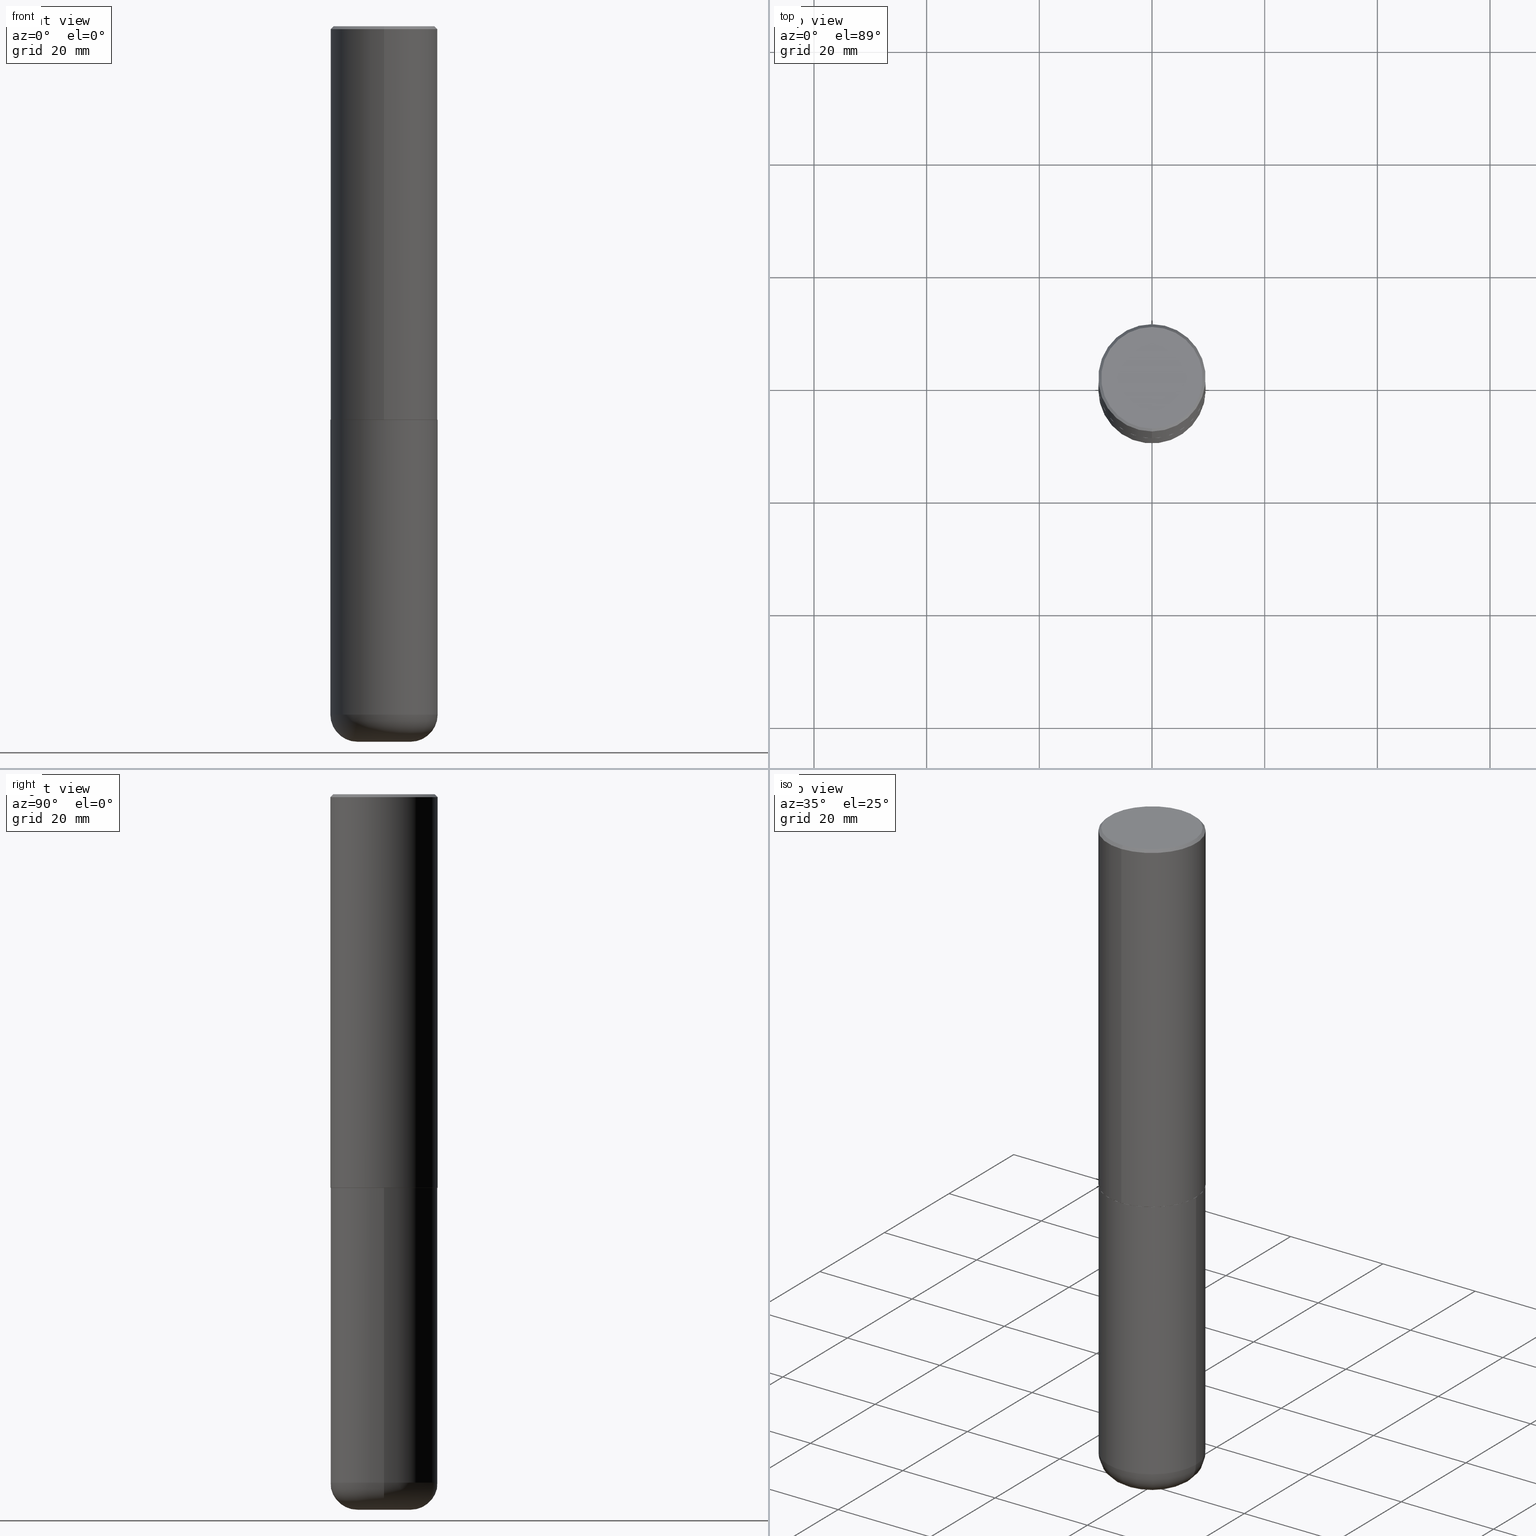
[diagram: canonical four-view strip — front | top / right | iso, engineering-drawing reading convention]
A machine part, canonical four-view strip (front | top / right | iso — engineering-drawing reading convention). The complete STEP part file that produces these views, byte-faithful:
ISO-10303-21;
HEADER;
FILE_DESCRIPTION (( 'STEP AP203' ),
    '1' );
FILE_NAME ('37677.STEP',
    '2024-03-02T07:57:05',
    ( '' ),
    ( '' ),
    'SwSTEP 2.0',
    'SolidWorks 2023',
    '' );
FILE_SCHEMA (( 'CONFIG_CONTROL_DESIGN' ));
ENDSEC;

DATA;
#1 = AXIS2_PLACEMENT_3D ( 'NONE', #125, #413, #289 ) ;
#2 = APPROVAL_ROLE ( '' ) ;
#3 = DIRECTION ( 'NONE',  ( 1.000000000000000000, -6.982962677686265922E-15, 4.876176775795935793E-29 ) ) ;
#4 = AXIS2_PLACEMENT_3D ( 'NONE', #245, #22, #303 ) ;
#5 = CARTESIAN_POINT ( 'NONE',  ( 6.726611077289389265E-29, -9.599322688432580971E-15, -2.750000000000000000 ) ) ;
#6 = LOCAL_TIME ( 2, 57, 5.000000000000000000, #117 ) ;
#7 = DIRECTION ( 'NONE',  ( -2.445468806185136597E-29, 3.491481338843145583E-15, 1.000000000000000000 ) ) ;
#8 = EDGE_LOOP ( 'NONE', ( #304, #250, #361, #72 ) ) ;
#9 = DIRECTION ( 'NONE',  ( -6.982962677686266711E-15, -1.000000000000000000, 3.491481338843145583E-15 ) ) ;
#10 = ORIENTED_EDGE ( 'NONE', *, *, #294, .T. ) ;
#11 = DIRECTION ( 'NONE',  ( -2.446040391741596606E-29, 3.490662795793665557E-15, 1.000000000000000000 ) ) ;
#12 = ADVANCED_FACE ( 'NONE', ( #354 ), #332, .T. ) ;
#13 = APPROVAL_PERSON_ORGANIZATION ( #84, #208, #275 ) ;
#14 = CARTESIAN_POINT ( 'NONE',  ( -1.141397163745304909E-45, 1.628849886601155835E-31, 4.666305460853910467E-17 ) ) ;
#15 = DIRECTION ( 'NONE',  ( 1.000000000000000000, -6.982962677686265922E-15, 0.000000000000000000 ) ) ;
#16 = CLOSED_SHELL ( 'NONE', ( #141, #129, #30, #73, #297, #167 ) ) ;
#17 = VERTEX_POINT ( 'NONE', #314 ) ;
#18 = VECTOR ( 'NONE', #271, 39.37007874015748143 ) ;
#19 = CARTESIAN_POINT ( 'NONE',  ( -2.572686749164323547E-15, -0.3750000000000001110, -0.01999999999999877570 ) ) ;
#20 = CIRCLE ( 'NONE', #241, 0.3750000000000003886 ) ;
#21 = CC_DESIGN_PERSON_AND_ORGANIZATION_ASSIGNMENT ( #384, #223, ( #307 ) ) ;
#22 = DIRECTION ( 'NONE',  ( 2.446040391741596606E-29, -3.490662795793665557E-15, -1.000000000000000000 ) ) ;
#23 = ORIENTED_EDGE ( 'NONE', *, *, #340, .F. ) ;
#24 = CARTESIAN_POINT ( 'NONE',  ( -2.618611004132351594E-15, -0.3750000000000002220, 1.308998548422625521E-15 ) ) ;
#25 = FACE_OUTER_BOUND ( 'NONE', #203, .T. ) ;
#26 = EDGE_CURVE ( 'NONE', #87, #219, #414, .T. ) ;
#27 = CONICAL_SURFACE ( 'NONE', #4, 0.3750000000000000555, 0.7853981633974465026 ) ;
#28 = EDGE_LOOP ( 'NONE', ( #155, #122, #311, #218 ) ) ;
#29 = VECTOR ( 'NONE', #388, 39.37007874015748143 ) ;
#30 = ADVANCED_FACE ( 'NONE', ( #25 ), #254, .F. ) ;
#31 = EDGE_LOOP ( 'NONE', ( #378, #385, #46, #205 ) ) ;
#32 = LINE ( 'NONE', #24, #295 ) ;
#33 = APPROVAL_DATE_TIME ( #390, #186 ) ;
#34 = CARTESIAN_POINT ( 'NONE',  ( -2.572686749164323547E-15, -0.3750000000000001110, -0.01999999999999877570 ) ) ;
#35 = ORIENTED_EDGE ( 'NONE', *, *, #308, .F. ) ;
#36 = CARTESIAN_POINT ( 'NONE',  ( 6.724165036897648492E-29, -9.595832025636787455E-15, -2.749000000000000110 ) ) ;
#37 = AXIS2_PLACEMENT_3D ( 'NONE', #381, #282, #359 ) ;
#38 = CARTESIAN_POINT ( 'NONE',  ( -2.611628041454596160E-15, -0.3740000000000096581, -2.749999999999998668 ) ) ;
#39 = APPROVAL_PERSON_ORGANIZATION ( #92, #126, #40 ) ;
#40 = APPROVAL_ROLE ( '' ) ;
#41 = DIRECTION ( 'NONE',  ( 1.000000000000000000, -6.982962677686266711E-15, 0.000000000000000000 ) ) ;
#42 = ORIENTED_EDGE ( 'NONE', *, *, #333, .F. ) ;
#43 = DIRECTION ( 'NONE',  ( -2.446040391741596045E-29, 3.490662795793665557E-15, 1.000000000000000000 ) ) ;
#44 = TOROIDAL_SURFACE ( 'NONE', #403, 0.1850000000000000533, 0.1899999999999999467 ) ;
#45 = DIRECTION ( 'NONE',  ( -1.000000000000000000, 6.982962677686265922E-15, -4.876176775795935793E-29 ) ) ;
#46 = ORIENTED_EDGE ( 'NONE', *, *, #174, .F. ) ;
#47 = PRODUCT_DEFINITION_FORMATION_WITH_SPECIFIED_SOURCE ( 'ANY', '', #307, .NOT_KNOWN. ) ;
#48 = DIRECTION ( 'NONE',  ( -2.445468806185136597E-29, 3.491481338843145583E-15, 1.000000000000000000 ) ) ;
#49 = CARTESIAN_POINT ( 'NONE',  ( 1.176270495775050811E-28, -1.679402523983553013E-14, -4.810000000000000497 ) ) ;
#50 = CARTESIAN_POINT ( 'NONE',  ( 6.726611077289389265E-29, -9.599322688432580971E-15, -2.750000000000000000 ) ) ;
#51 = CARTESIAN_POINT ( 'NONE',  ( 0.3750000000000000555, -1.222018468595100145E-14, -2.750000000000000000 ) ) ;
#52 = ORIENTED_EDGE ( 'NONE', *, *, #226, .T. ) ;
#53 = CARTESIAN_POINT ( 'NONE',  ( 2.618611004132350411E-15, 0.3749999999999999445, -0.02000000000000139513 ) ) ;
#54 = ADVANCED_FACE ( 'NONE', ( #66 ), #283, .F. ) ;
#55 = VERTEX_POINT ( 'NONE', #299 ) ;
#56 = CONICAL_SURFACE ( 'NONE', #338, 0.3739999999999999991, 0.7853981633977213939 ) ;
#57 = DIRECTION ( 'NONE',  ( -2.446040391741596606E-29, 3.490662795793665557E-15, 1.000000000000000000 ) ) ;
#58 = LOCAL_TIME ( 2, 57, 5.000000000000000000, #98 ) ;
#59 = PERSON_AND_ORGANIZATION_ROLE ( 'classification_officer' ) ;
#60 = CARTESIAN_POINT ( 'NONE',  ( 2.660982545421643429E-15, 0.3739999999999903957, -2.750000000000000888 ) ) ;
#61 = MECHANICAL_CONTEXT ( 'NONE', #169, 'mechanical' ) ;
#62 = CIRCLE ( 'NONE', #124, 0.3750000000000000555 ) ;
#63 = VERTEX_POINT ( 'NONE', #237 ) ;
#64 = DATE_AND_TIME ( #187, #234 ) ;
#65 = UNCERTAINTY_MEASURE_WITH_UNIT (LENGTH_MEASURE( 1.000000000000000082E-05 ), #334, 'distance_accuracy_value', 'NONE');
#66 = FACE_OUTER_BOUND ( 'NONE', #331, .T. ) ;
#67 = SHAPE_DEFINITION_REPRESENTATION ( #142, #113 ) ;
#68 = DIRECTION ( 'NONE',  ( 6.982962677686265922E-15, 1.000000000000000000, -3.494488891895536035E-15 ) ) ;
#69 = PERSON_AND_ORGANIZATION ( #220, #335 ) ;
#70 = PERSON_AND_ORGANIZATION ( #220, #335 ) ;
#71 = DIRECTION ( 'NONE',  ( 2.446040391741596045E-29, -3.490662795793665557E-15, -1.000000000000000000 ) ) ;
#72 = ORIENTED_EDGE ( 'NONE', *, *, #294, .F. ) ;
#73 = ADVANCED_FACE ( 'NONE', ( #328 ), #370, .T. ) ;
#74 = DIRECTION ( 'NONE',  ( 2.438088387897960049E-29, -3.491481338843145188E-15, -1.000000000000000000 ) ) ;
#75 = FACE_OUTER_BOUND ( 'NONE', #31, .T. ) ;
#76 = CIRCLE ( 'NONE', #207, 0.3549999999999999822 ) ;
#77 = EDGE_CURVE ( 'NONE', #349, #253, #62, .T. ) ;
#78 = CARTESIAN_POINT ( 'NONE',  ( -2.611628041454596160E-15, -0.3740000000000096581, -2.749999999999998668 ) ) ;
#79 = CARTESIAN_POINT ( 'NONE',  ( 1.222734403092568523E-28, -1.745740669421572989E-14, -5.000000000000000000 ) ) ;
#80 = DIRECTION ( 'NONE',  ( -6.982962677686266711E-15, -1.000000000000000000, 2.921762560068730595E-15 ) ) ;
#81 = AXIS2_PLACEMENT_3D ( 'NONE', #163, #9, #336 ) ;
#82 = LOCAL_TIME ( 2, 57, 5.000000000000000000, #264 ) ;
#83 = CARTESIAN_POINT ( 'NONE',  ( -2.504081769186608216E-15, -0.3549999999999999822, 1.285848347115290366E-15 ) ) ;
#84 = PERSON_AND_ORGANIZATION ( #220, #335 ) ;
#85 = CARTESIAN_POINT ( 'NONE',  ( 1.222734403092568523E-28, -1.745740669421572989E-14, -5.000000000000000000 ) ) ;
#86 = AXIS2_PLACEMENT_3D ( 'NONE', #329, #330, #400 ) ;
#87 = VERTEX_POINT ( 'NONE', #78 ) ;
#88 = ORIENTED_EDGE ( 'NONE', *, *, #215, .T. ) ;
#89 = DIRECTION ( 'NONE',  ( -6.982962677686265922E-15, -1.000000000000000000, 2.913971193241877611E-15 ) ) ;
#90 = EDGE_LOOP ( 'NONE', ( #221, #52, #393, #402 ) ) ;
#91 = CIRCLE ( 'NONE', #377, 0.3750000000000003886 ) ;
#92 = PERSON_AND_ORGANIZATION ( #220, #335 ) ;
#93 = ORIENTED_EDGE ( 'NONE', *, *, #146, .F. ) ;
#94 = LOCAL_TIME ( 2, 57, 5.000000000000000000, #357 ) ;
#95 = DIRECTION ( 'NONE',  ( -4.937700262165896205E-15, -0.7071067811867381980, 0.7071067811863568364 ) ) ;
#96 = DATE_AND_TIME ( #159, #6 ) ;
#97 = APPROVAL_DATE_TIME ( #389, #208 ) ;
#98 = COORDINATED_UNIVERSAL_TIME_OFFSET ( 5, 0, .BEHIND. ) ;
#99 = ADVANCED_FACE ( 'NONE', ( #201 ), #204, .F. ) ;
#100 = APPROVAL_STATUS ( 'not_yet_approved' ) ;
#101 = PLANE ( 'NONE',  #153 ) ;
#102 = DIRECTION ( 'NONE',  ( 1.000000000000000000, -6.982962677686265922E-15, 4.876176775795935793E-29 ) ) ;
#103 = CIRCLE ( 'NONE', #266, 0.3750000000000001110 ) ;
#104 = DIRECTION ( 'NONE',  ( -2.445468806185136597E-29, 3.491481338843145583E-15, 1.000000000000000000 ) ) ;
#105 = FACE_OUTER_BOUND ( 'NONE', #182, .T. ) ;
#106 = EDGE_CURVE ( 'NONE', #210, #17, #76, .T. ) ;
#107 = DIRECTION ( 'NONE',  ( 1.000000000000000000, -6.982962677686272233E-15, 0.000000000000000000 ) ) ;
#108 = ORIENTED_EDGE ( 'NONE', *, *, #302, .T. ) ;
#109 = AXIS2_PLACEMENT_3D ( 'NONE', #255, #127, #318 ) ;
#110 = CC_DESIGN_PERSON_AND_ORGANIZATION_ASSIGNMENT ( #415, #157, ( #231 ) ) ;
#111 = FACE_OUTER_BOUND ( 'NONE', #8, .T. ) ;
#112 = EDGE_LOOP ( 'NONE', ( #88, #285, #120, #42 ) ) ;
#113 = ADVANCED_BREP_SHAPE_REPRESENTATION ( '37677', ( #344, #352, #109 ), #399 ) ;
#114 = EDGE_CURVE ( 'NONE', #148, #63, #200, .T. ) ;
#115 = DIRECTION ( 'NONE',  ( -6.982962677686266711E-15, -1.000000000000000000, 3.490662795793665951E-15 ) ) ;
#116 = AXIS2_PLACEMENT_3D ( 'NONE', #14, #310, #306 ) ;
#117 = COORDINATED_UNIVERSAL_TIME_OFFSET ( 5, 0, .BEHIND. ) ;
#118 = EDGE_LOOP ( 'NONE', ( #166, #407, #412, #23 ) ) ;
#119 = DIRECTION ( 'NONE',  ( -2.446040391741596606E-29, 3.490662795793665557E-15, 1.000000000000000000 ) ) ;
#120 = ORIENTED_EDGE ( 'NONE', *, *, #358, .F. ) ;
#121 = ADVANCED_FACE ( 'NONE', ( #134 ), #396, .T. ) ;
#122 = ORIENTED_EDGE ( 'NONE', *, *, #222, .F. ) ;
#123 = CALENDAR_DATE ( 2024, 2, 3 ) ;
#124 = AXIS2_PLACEMENT_3D ( 'NONE', #240, #195, #41 ) ;
#125 = CARTESIAN_POINT ( 'NONE',  ( 4.892080783483214581E-31, -6.981325591587361238E-17, -0.02000000000000008715 ) ) ;
#126 = APPROVAL ( #291, 'UNSPECIFIED' ) ;
#127 = DIRECTION ( 'NONE',  ( 0.000000000000000000, 0.000000000000000000, 1.000000000000000000 ) ) ;
#128 = APPLICATION_PROTOCOL_DEFINITION ( 'international standard', 'config_control_design', 1994, #263 ) ;
#129 = ADVANCED_FACE ( 'NONE', ( #105 ), #44, .T. ) ;
#130 = LENGTH_MEASURE_WITH_UNIT ( LENGTH_MEASURE( 0.02539999999999999897 ), #233 );
#131 = LINE ( 'NONE', #198, #18 ) ;
#132 = CALENDAR_DATE ( 2024, 2, 3 ) ;
#133 = AXIS2_PLACEMENT_3D ( 'NONE', #216, #346, #312 ) ;
#134 = FACE_OUTER_BOUND ( 'NONE', #112, .T. ) ;
#135 = DIRECTION ( 'NONE',  ( 1.000000000000000000, -6.982962677686265922E-15, 0.000000000000000000 ) ) ;
#136 = CARTESIAN_POINT ( 'NONE',  ( 0.000000000000000000, 0.000000000000000000, 0.000000000000000000 ) ) ;
#137 = VERTEX_POINT ( 'NONE', #367 ) ;
#138 = AXIS2_PLACEMENT_3D ( 'NONE', #268, #104, #102 ) ;
#139 = DIRECTION ( 'NONE',  ( -2.445468806185136597E-29, 3.491481338843145583E-15, 1.000000000000000000 ) ) ;
#140 = LINE ( 'NONE', #19, #179 ) ;
#141 = ADVANCED_FACE ( 'NONE', ( #75 ), #168, .T. ) ;
#142 = PRODUCT_DEFINITION_SHAPE ( 'NONE', 'NONE',  #231 ) ;
#143 = CC_DESIGN_PERSON_AND_ORGANIZATION_ASSIGNMENT ( #348, #247, ( #47 ) ) ;
#144 = CIRCLE ( 'NONE', #116, 0.3549999999999999822 ) ;
#145 = CC_DESIGN_APPROVAL ( #126, ( #202 ) ) ;
#146 = EDGE_CURVE ( 'NONE', #137, #349, #131, .T. ) ;
#147 = DIRECTION ( 'NONE',  ( 4.937700262164538576E-15, 0.7071067811865437980, -0.7071067811865512365 ) ) ;
#148 = VERTEX_POINT ( 'NONE', #397 ) ;
#149 = CC_DESIGN_PERSON_AND_ORGANIZATION_ASSIGNMENT ( #374, #59, ( #202 ) ) ;
#150 = SECURITY_CLASSIFICATION_LEVEL ( 'unclassified' ) ;
#151 = FACE_OUTER_BOUND ( 'NONE', #28, .T. ) ;
#152 = CARTESIAN_POINT ( 'NONE',  ( 6.725039217009124520E-29, -9.601573681818649859E-15, -2.750000000000000000 ) ) ;
#153 = AXIS2_PLACEMENT_3D ( 'NONE', #235, #74, #45 ) ;
#154 = DIRECTION ( 'NONE',  ( -2.446040391741596606E-29, 3.490662795793665557E-15, 1.000000000000000000 ) ) ;
#155 = ORIENTED_EDGE ( 'NONE', *, *, #226, .F. ) ;
#156 = DIRECTION ( 'NONE',  ( 7.105427357601001859E-15, 1.000000000000000000, -3.491481338843145583E-15 ) ) ;
#157 = PERSON_AND_ORGANIZATION_ROLE ( 'creator' ) ;
#158 = LINE ( 'NONE', #262, #29 ) ;
#159 = CALENDAR_DATE ( 2024, 2, 3 ) ;
#160 = EDGE_CURVE ( 'NONE', #375, #410, #305, .T. ) ;
#161 = AXIS2_PLACEMENT_3D ( 'NONE', #416, #350, #68 ) ;
#162 = DIRECTION ( 'NONE',  ( -6.982962677686265922E-15, -1.000000000000000000, 3.490662795793665557E-15 ) ) ;
#163 = CARTESIAN_POINT ( 'NONE',  ( 0.1850000000000000533, -1.808587333520749010E-14, -4.810000000000000497 ) ) ;
#164 = DIRECTION ( 'NONE',  ( 1.000000000000000000, -6.982962677686266711E-15, 0.000000000000000000 ) ) ;
#165 = CC_DESIGN_SECURITY_CLASSIFICATION ( #202, ( #47 ) ) ;
#166 = ORIENTED_EDGE ( 'NONE', *, *, #193, .F. ) ;
#167 = ADVANCED_FACE ( 'NONE', ( #265 ), #101, .T. ) ;
#168 = CYLINDRICAL_SURFACE ( 'NONE', #276, 0.3750000000000001110 ) ;
#169 = APPLICATION_CONTEXT ( 'configuration controlled 3d designs of mechanical parts and assemblies' ) ;
#170 = CC_DESIGN_DATE_AND_TIME_ASSIGNMENT ( #387, #225, ( #231 ) ) ;
#171 = CARTESIAN_POINT ( 'NONE',  ( 2.478951750578624209E-15, 0.3549999999999999822, -1.215853765202481601E-15 ) ) ;
#172 = VECTOR ( 'NONE', #95, 39.37007874015748143 ) ;
#173 = DIRECTION ( 'NONE',  ( -2.446040391741596606E-29, 3.490662795793665557E-15, 1.000000000000000000 ) ) ;
#174 = EDGE_CURVE ( 'NONE', #253, #349, #369, .T. ) ;
#175 = DIRECTION ( 'NONE',  ( -2.445468806185136597E-29, 3.491481338843145583E-15, 1.000000000000000000 ) ) ;
#176 =( NAMED_UNIT ( * ) SI_UNIT ( $, .STERADIAN. ) SOLID_ANGLE_UNIT ( ) );
#177 = EDGE_CURVE ( 'NONE', #63, #137, #290, .T. ) ;
#178 = DIRECTION ( 'NONE',  ( -2.446040391741596606E-29, 3.490662795793665557E-15, 1.000000000000000000 ) ) ;
#179 = VECTOR ( 'NONE', #206, 39.37007874015748143 ) ;
#180 =( NAMED_UNIT ( * ) PLANE_ANGLE_UNIT ( ) SI_UNIT ( $, .RADIAN. ) );
#181 = DIRECTION ( 'NONE',  ( -2.446040391741596606E-29, 3.490662795793665557E-15, 1.000000000000000000 ) ) ;
#182 = EDGE_LOOP ( 'NONE', ( #108, #315, #406, #269 ) ) ;
#183 = ORIENTED_EDGE ( 'NONE', *, *, #160, .F. ) ;
#184 = CIRCLE ( 'NONE', #398, 0.1850000000000000810 ) ;
#185 = ORIENTED_EDGE ( 'NONE', *, *, #77, .F. ) ;
#186 = APPROVAL ( #192, 'UNSPECIFIED' ) ;
#187 = CALENDAR_DATE ( 2024, 2, 3 ) ;
#188 = DIRECTION ( 'NONE',  ( -1.000000000000000000, 7.105427357601001070E-15, 0.000000000000000000 ) ) ;
#189 = ORIENTED_EDGE ( 'NONE', *, *, #333, .T. ) ;
#190 = CARTESIAN_POINT ( 'NONE',  ( 2.664535259100376880E-15, 0.3750000000000002220, -1.308998548422625521E-15 ) ) ;
#191 = ORIENTED_EDGE ( 'NONE', *, *, #284, .F. ) ;
#192 = APPROVAL_STATUS ( 'not_yet_approved' ) ;
#193 = EDGE_CURVE ( 'NONE', #382, #55, #270, .T. ) ;
#194 = PERSON_AND_ORGANIZATION_ROLE ( 'creator' ) ;
#195 = DIRECTION ( 'NONE',  ( -2.445468806185136597E-29, 3.491481338843145583E-15, 1.000000000000000000 ) ) ;
#196 = ORIENTED_EDGE ( 'NONE', *, *, #26, .F. ) ;
#197 = CARTESIAN_POINT ( 'NONE',  ( 6.725039217009124520E-29, -9.601573681818649859E-15, -2.750000000000000000 ) ) ;
#198 = CARTESIAN_POINT ( 'NONE',  ( -0.3750000000000001110, 2.664535259100376486E-15, -1.844600658845590159E-29 ) ) ;
#199 = ORIENTED_EDGE ( 'NONE', *, *, #249, .F. ) ;
#200 = CIRCLE ( 'NONE', #81, 0.1899999999999999190 ) ;
#201 = FACE_OUTER_BOUND ( 'NONE', #280, .T. ) ;
#202 = SECURITY_CLASSIFICATION ( '', '', #150 ) ;
#203 = EDGE_LOOP ( 'NONE', ( #229, #321 ) ) ;
#204 = PLANE ( 'NONE',  #356 ) ;
#205 = ORIENTED_EDGE ( 'NONE', *, *, #411, .F. ) ;
#206 = DIRECTION ( 'NONE',  ( -4.851104656540954809E-15, -0.7071067811865486830, -0.7071067811865463515 ) ) ;
#207 = AXIS2_PLACEMENT_3D ( 'NONE', #392, #298, #368 ) ;
#208 = APPROVAL ( #100, 'UNSPECIFIED' ) ;
#209 = CARTESIAN_POINT ( 'NONE',  ( 6.724165036897648492E-29, -9.595832025636787455E-15, -2.749000000000000110 ) ) ;
#210 = VERTEX_POINT ( 'NONE', #83 ) ;
#211 = CONICAL_SURFACE ( 'NONE', #161, 0.3750000000000000555, 0.7853981633974465026 ) ;
#212 = FACE_OUTER_BOUND ( 'NONE', #343, .T. ) ;
#213 = ORIENTED_EDGE ( 'NONE', *, *, #106, .T. ) ;
#214 = ORIENTED_EDGE ( 'NONE', *, *, #302, .F. ) ;
#215 = EDGE_CURVE ( 'NONE', #219, #55, #91, .T. ) ;
#216 = CARTESIAN_POINT ( 'NONE',  ( 1.176270495775050811E-28, -1.679402523983553013E-14, -4.810000000000000497 ) ) ;
#217 = CIRCLE ( 'NONE', #37, 0.3739999999999999991 ) ;
#218 = ORIENTED_EDGE ( 'NONE', *, *, #160, .T. ) ;
#219 = VERTEX_POINT ( 'NONE', #300 ) ;
#220 = PERSON ( 'UNSPECIFIED', 'UNSPECIFIED', 'UNSPECIFIED', ('UNSPECIFIED'), ('UNSPECIFIED'), ('UNSPECIFIED') ) ;
#221 = ORIENTED_EDGE ( 'NONE', *, *, #106, .F. ) ;
#222 = EDGE_CURVE ( 'NONE', #17, #210, #144, .T. ) ;
#223 = PERSON_AND_ORGANIZATION_ROLE ( 'design_owner' ) ;
#224 = CARTESIAN_POINT ( 'NONE',  ( -0.1850000000000000810, -1.513619630689734772E-14, -5.000000000000000000 ) ) ;
#225 = DATE_TIME_ROLE ( 'creation_date' ) ;
#226 = EDGE_CURVE ( 'NONE', #210, #410, #140, .T. ) ;
#227 = DATE_TIME_ROLE ( 'classification_date' ) ;
#228 = LINE ( 'NONE', #190, #261 ) ;
#229 = ORIENTED_EDGE ( 'NONE', *, *, #174, .T. ) ;
#230 = APPLICATION_PROTOCOL_DEFINITION ( 'international standard', 'config_control_design', 1994, #169 ) ;
#231 = PRODUCT_DEFINITION ( 'UNKNOWN', '', #47, #288 ) ;
#232 = AXIS2_PLACEMENT_3D ( 'NONE', #197, #292, #164 ) ;
#233 =( LENGTH_UNIT ( ) NAMED_UNIT ( * ) SI_UNIT ( $, .METRE. ) );
#234 = LOCAL_TIME ( 2, 57, 5.000000000000000000, #322 ) ;
#235 = CARTESIAN_POINT ( 'NONE',  ( 1.222734403092568523E-28, -1.745740669421572989E-14, -5.000000000000000000 ) ) ;
#236 = EDGE_CURVE ( 'NONE', #17, #375, #273, .T. ) ;
#237 = CARTESIAN_POINT ( 'NONE',  ( 0.3750000000000000555, -1.941263624396788015E-14, -4.810000000000000497 ) ) ;
#238 = ORIENTED_EDGE ( 'NONE', *, *, #222, .T. ) ;
#239 = CARTESIAN_POINT ( 'NONE',  ( 0.000000000000000000, 0.000000000000000000, 0.000000000000000000 ) ) ;
#240 = CARTESIAN_POINT ( 'NONE',  ( 6.725039217009124520E-29, -9.601573681818649859E-15, -2.750000000000000000 ) ) ;
#241 = AXIS2_PLACEMENT_3D ( 'NONE', #36, #181, #89 ) ;
#242 = ORIENTED_EDGE ( 'NONE', *, *, #418, .F. ) ;
#243 = DIRECTION ( 'NONE',  ( -6.982962677686266711E-15, -1.000000000000000000, 3.490662795793665951E-15 ) ) ;
#244 = CC_DESIGN_PERSON_AND_ORGANIZATION_ASSIGNMENT ( #70, #194, ( #47 ) ) ;
#245 = CARTESIAN_POINT ( 'NONE',  ( 4.892080783483214581E-31, -6.981325591587361238E-17, -0.02000000000000008715 ) ) ;
#246 = AXIS2_PLACEMENT_3D ( 'NONE', #258, #154, #287 ) ;
#247 = PERSON_AND_ORGANIZATION_ROLE ( 'design_supplier' ) ;
#248 = FACE_OUTER_BOUND ( 'NONE', #90, .T. ) ;
#249 = EDGE_CURVE ( 'NONE', #380, #148, #326, .T. ) ;
#250 = ORIENTED_EDGE ( 'NONE', *, *, #249, .T. ) ;
#251 = VECTOR ( 'NONE', #371, 39.37007874015748143 ) ;
#252 = ADVANCED_FACE ( 'NONE', ( #212 ), #56, .T. ) ;
#253 = VERTEX_POINT ( 'NONE', #51 ) ;
#254 = PLANE ( 'NONE',  #373 ) ;
#255 = CARTESIAN_POINT ( 'NONE',  ( 0.000000000000000000, 0.000000000000000000, 0.000000000000000000 ) ) ;
#256 = DIRECTION ( 'NONE',  ( -2.445468806185136597E-29, 3.491481338843145583E-15, 1.000000000000000000 ) ) ;
#257 = ADVANCED_FACE ( 'NONE', ( #376 ), #342, .T. ) ;
#258 = CARTESIAN_POINT ( 'NONE',  ( 6.726611077289389265E-29, -9.599322688432580971E-15, -2.750000000000000000 ) ) ;
#259 = CALENDAR_DATE ( 2024, 2, 3 ) ;
#260 = CIRCLE ( 'NONE', #417, 0.3739999999999999991 ) ;
#261 = VECTOR ( 'NONE', #323, 39.37007874015748143 ) ;
#262 = CARTESIAN_POINT ( 'NONE',  ( 0.3750000000000001110, -2.618611004132350411E-15, 1.828566290923476483E-29 ) ) ;
#263 = APPLICATION_CONTEXT ( 'configuration controlled 3d designs of mechanical parts and assemblies' ) ;
#264 = COORDINATED_UNIVERSAL_TIME_OFFSET ( 5, 0, .BEHIND. ) ;
#265 = FACE_OUTER_BOUND ( 'NONE', #279, .T. ) ;
#266 = AXIS2_PLACEMENT_3D ( 'NONE', #339, #175, #15 ) ;
#267 = APPROVAL_PERSON_ORGANIZATION ( #69, #186, #2 ) ;
#268 = CARTESIAN_POINT ( 'NONE',  ( 0.000000000000000000, 0.000000000000000000, 0.000000000000000000 ) ) ;
#269 = ORIENTED_EDGE ( 'NONE', *, *, #114, .F. ) ;
#270 = LINE ( 'NONE', #408, #251 ) ;
#271 = DIRECTION ( 'NONE',  ( -2.445468806185136877E-29, 3.491481338843145188E-15, 1.000000000000000000 ) ) ;
#272 = AXIS2_PLACEMENT_3D ( 'NONE', #296, #7, #135 ) ;
#273 = LINE ( 'NONE', #53, #391 ) ;
#274 = ORIENTED_EDGE ( 'NONE', *, *, #215, .F. ) ;
#275 = APPROVAL_ROLE ( '' ) ;
#276 = AXIS2_PLACEMENT_3D ( 'NONE', #136, #139, #3 ) ;
#277 = CIRCLE ( 'NONE', #1, 0.3750000000000000555 ) ;
#278 = DIRECTION ( 'NONE',  ( -6.982962677686265922E-15, -1.000000000000000000, 2.913971193241877611E-15 ) ) ;
#279 = EDGE_LOOP ( 'NONE', ( #214, #199 ) ) ;
#280 = EDGE_LOOP ( 'NONE', ( #191, #35 ) ) ;
#281 = ADVANCED_FACE ( 'NONE', ( #248 ), #27, .T. ) ;
#282 = DIRECTION ( 'NONE',  ( -2.446040391741596606E-29, 3.490662795793665557E-15, 1.000000000000000000 ) ) ;
#283 = PLANE ( 'NONE',  #362 ) ;
#284 = EDGE_CURVE ( 'NONE', #87, #382, #260, .T. ) ;
#285 = ORIENTED_EDGE ( 'NONE', *, *, #418, .T. ) ;
#286 = CARTESIAN_POINT ( 'NONE',  ( -0.3750000000000000555, -1.053326420172671351E-14, -2.750000000000000000 ) ) ;
#287 = DIRECTION ( 'NONE',  ( -6.982962677686266711E-15, -1.000000000000000000, 2.921762560068730595E-15 ) ) ;
#288 = DESIGN_CONTEXT ( 'detailed design', #263, 'design' ) ;
#289 = DIRECTION ( 'NONE',  ( -6.982962677686265922E-15, -1.000000000000000000, 3.494488891895536035E-15 ) ) ;
#290 = CIRCLE ( 'NONE', #272, 0.3750000000000001110 ) ;
#291 = APPROVAL_STATUS ( 'not_yet_approved' ) ;
#292 = DIRECTION ( 'NONE',  ( -2.445468806185136597E-29, 3.491481338843145583E-15, 1.000000000000000000 ) ) ;
#293 = AXIS2_PLACEMENT_3D ( 'NONE', #239, #11, #243 ) ;
#294 = EDGE_CURVE ( 'NONE', #137, #63, #103, .T. ) ;
#295 = VECTOR ( 'NONE', #119, 39.37007874015748143 ) ;
#296 = CARTESIAN_POINT ( 'NONE',  ( 1.176270495775050811E-28, -1.679402523983553013E-14, -4.810000000000000497 ) ) ;
#297 = ADVANCED_FACE ( 'NONE', ( #111 ), #345, .T. ) ;
#298 = DIRECTION ( 'NONE',  ( -2.446040391741596606E-29, 3.490662795793665557E-15, 1.000000000000000000 ) ) ;
#299 = CARTESIAN_POINT ( 'NONE',  ( 2.664535259100411196E-15, 0.3749999999999907296, -2.749000000000000998 ) ) ;
#300 = CARTESIAN_POINT ( 'NONE',  ( -2.618611004132284935E-15, -0.3750000000000099920, -2.748999999999999222 ) ) ;
#301 = CARTESIAN_POINT ( 'NONE',  ( 0.000000000000000000, 0.000000000000000000, 0.000000000000000000 ) ) ;
#302 = EDGE_CURVE ( 'NONE', #148, #380, #184, .T. ) ;
#303 = DIRECTION ( 'NONE',  ( 6.982962677686265922E-15, 1.000000000000000000, -3.494488891895536035E-15 ) ) ;
#304 = ORIENTED_EDGE ( 'NONE', *, *, #395, .F. ) ;
#305 = CIRCLE ( 'NONE', #86, 0.3750000000000000555 ) ;
#306 = DIRECTION ( 'NONE',  ( -6.982962677686265922E-15, -1.000000000000000000, 3.490662795793665557E-15 ) ) ;
#307 = PRODUCT ( '37677', '37677', '', ( #61 ) ) ;
#308 = EDGE_CURVE ( 'NONE', #382, #87, #217, .T. ) ;
#309 = ORIENTED_EDGE ( 'NONE', *, *, #284, .T. ) ;
#310 = DIRECTION ( 'NONE',  ( -2.446040391741596606E-29, 3.490662795793665557E-15, 1.000000000000000000 ) ) ;
#311 = ORIENTED_EDGE ( 'NONE', *, *, #236, .T. ) ;
#312 = DIRECTION ( 'NONE',  ( 1.000000000000000000, -6.982962677686269077E-15, 4.883557194083113462E-29 ) ) ;
#313 = PRODUCT_RELATED_PRODUCT_CATEGORY ( 'detail', '', ( #307 ) ) ;
#314 = CARTESIAN_POINT ( 'NONE',  ( 2.548781377355487113E-15, 0.3549999999999999822, -1.192522237898212341E-15 ) ) ;
#315 = ORIENTED_EDGE ( 'NONE', *, *, #395, .T. ) ;
#316 = AXIS2_PLACEMENT_3D ( 'NONE', #301, #57, #115 ) ;
#317 = ORIENTED_EDGE ( 'NONE', *, *, #411, .T. ) ;
#318 = DIRECTION ( 'NONE',  ( 1.000000000000000000, 0.000000000000000000, 0.000000000000000000 ) ) ;
#319 = CC_DESIGN_APPROVAL ( #208, ( #47 ) ) ;
#320 = DIRECTION ( 'NONE',  ( 1.000000000000000000, -6.982962677686272233E-15, 0.000000000000000000 ) ) ;
#321 = ORIENTED_EDGE ( 'NONE', *, *, #77, .T. ) ;
#322 = COORDINATED_UNIVERSAL_TIME_OFFSET ( 5, 0, .BEHIND. ) ;
#323 = DIRECTION ( 'NONE',  ( -2.446040391741596606E-29, 3.490662795793665557E-15, 1.000000000000000000 ) ) ;
#324 = CLOSED_SHELL ( 'NONE', ( #252, #121, #281, #360, #257, #12, #99, #54 ) ) ;
#325 = EDGE_LOOP ( 'NONE', ( #242, #351, #189, #183 ) ) ;
#326 = CIRCLE ( 'NONE', #409, 0.1850000000000000810 ) ;
#327 = AXIS2_PLACEMENT_3D ( 'NONE', #353, #156, #188 ) ;
#328 = FACE_OUTER_BOUND ( 'NONE', #341, .T. ) ;
#329 = CARTESIAN_POINT ( 'NONE',  ( 4.892080783483214581E-31, -6.981325591587361238E-17, -0.02000000000000008715 ) ) ;
#330 = DIRECTION ( 'NONE',  ( -2.446040391741596606E-29, 3.490662795793665557E-15, 1.000000000000000000 ) ) ;
#331 = EDGE_LOOP ( 'NONE', ( #238, #213 ) ) ;
#332 = CONICAL_SURFACE ( 'NONE', #246, 0.3739999999999999991, 0.7853981633977213939 ) ;
#333 = EDGE_CURVE ( 'NONE', #219, #410, #32, .T. ) ;
#334 =( CONVERSION_BASED_UNIT ( 'INCH', #130 ) LENGTH_UNIT ( ) NAMED_UNIT ( #404 ) );
#335 = ORGANIZATION ( 'UNSPECIFIED', 'UNSPECIFIED', '' ) ;
#336 = DIRECTION ( 'NONE',  ( 1.000000000000000000, -6.982962677686264344E-15, 0.000000000000000000 ) ) ;
#337 = DIRECTION ( 'NONE',  ( -2.445468806185136597E-29, 3.491481338843145583E-15, 1.000000000000000000 ) ) ;
#338 = AXIS2_PLACEMENT_3D ( 'NONE', #50, #173, #401 ) ;
#339 = CARTESIAN_POINT ( 'NONE',  ( 1.176270495775050811E-28, -1.679402523983553013E-14, -4.810000000000000497 ) ) ;
#340 = EDGE_CURVE ( 'NONE', #55, #219, #20, .T. ) ;
#341 = EDGE_LOOP ( 'NONE', ( #93, #10, #317, #185 ) ) ;
#342 = CYLINDRICAL_SURFACE ( 'NONE', #316, 0.3750000000000002220 ) ;
#343 = EDGE_LOOP ( 'NONE', ( #309, #347, #274, #196 ) ) ;
#344 = MANIFOLD_SOLID_BREP ( 'Body-Move/Copy2[1]', #16 ) ;
#345 = TOROIDAL_SURFACE ( 'NONE', #133, 0.1850000000000000533, 0.1899999999999999467 ) ;
#346 = DIRECTION ( 'NONE',  ( -2.445468806185136597E-29, 3.491481338843145583E-15, 1.000000000000000000 ) ) ;
#347 = ORIENTED_EDGE ( 'NONE', *, *, #193, .T. ) ;
#348 = PERSON_AND_ORGANIZATION ( #220, #335 ) ;
#349 = VERTEX_POINT ( 'NONE', #286 ) ;
#350 = DIRECTION ( 'NONE',  ( 2.446040391741596606E-29, -3.490662795793665557E-15, -1.000000000000000000 ) ) ;
#351 = ORIENTED_EDGE ( 'NONE', *, *, #340, .T. ) ;
#352 = MANIFOLD_SOLID_BREP ( 'Body-Move/Copy2[2]', #324 ) ;
#353 = CARTESIAN_POINT ( 'NONE',  ( -0.1850000000000000533, -1.547952117867934441E-14, -4.810000000000000497 ) ) ;
#354 = FACE_OUTER_BOUND ( 'NONE', #118, .T. ) ;
#355 = CARTESIAN_POINT ( 'NONE',  ( 2.618611004132350411E-15, 0.3749999999999999445, -0.02000000000000139513 ) ) ;
#356 = AXIS2_PLACEMENT_3D ( 'NONE', #5, #43, #162 ) ;
#357 = COORDINATED_UNIVERSAL_TIME_OFFSET ( 5, 0, .BEHIND. ) ;
#358 = EDGE_CURVE ( 'NONE', #410, #375, #277, .T. ) ;
#359 = DIRECTION ( 'NONE',  ( -6.982962677686266711E-15, -1.000000000000000000, 2.921762560068730595E-15 ) ) ;
#360 = ADVANCED_FACE ( 'NONE', ( #151 ), #211, .T. ) ;
#361 = ORIENTED_EDGE ( 'NONE', *, *, #114, .T. ) ;
#362 = AXIS2_PLACEMENT_3D ( 'NONE', #171, #71, #365 ) ;
#363 = CIRCLE ( 'NONE', #327, 0.1899999999999999190 ) ;
#364 = CC_DESIGN_DATE_AND_TIME_ASSIGNMENT ( #96, #227, ( #202 ) ) ;
#365 = DIRECTION ( 'NONE',  ( 6.982962677686265922E-15, 1.000000000000000000, -3.490662795793665557E-15 ) ) ;
#366 = APPROVAL_DATE_TIME ( #64, #126 ) ;
#367 = CARTESIAN_POINT ( 'NONE',  ( -0.3750000000000000555, -1.412948998073515443E-14, -4.810000000000000497 ) ) ;
#368 = DIRECTION ( 'NONE',  ( -6.982962677686265922E-15, -1.000000000000000000, 3.490662795793665557E-15 ) ) ;
#369 = CIRCLE ( 'NONE', #232, 0.3750000000000000555 ) ;
#370 = CYLINDRICAL_SURFACE ( 'NONE', #138, 0.3750000000000001110 ) ;
#371 = DIRECTION ( 'NONE',  ( 5.024295867789434219E-15, 0.7071067811867430830, 0.7071067811863519514 ) ) ;
#372 = DIRECTION ( 'NONE',  ( -2.446040391741596606E-29, 3.490662795793665557E-15, 1.000000000000000000 ) ) ;
#373 = AXIS2_PLACEMENT_3D ( 'NONE', #152, #386, #383 ) ;
#374 = PERSON_AND_ORGANIZATION ( #220, #335 ) ;
#375 = VERTEX_POINT ( 'NONE', #355 ) ;
#376 = FACE_OUTER_BOUND ( 'NONE', #325, .T. ) ;
#377 = AXIS2_PLACEMENT_3D ( 'NONE', #209, #178, #278 ) ;
#378 = ORIENTED_EDGE ( 'NONE', *, *, #177, .T. ) ;
#379 = CC_DESIGN_APPROVAL ( #186, ( #231 ) ) ;
#380 = VERTEX_POINT ( 'NONE', #224 ) ;
#381 = CARTESIAN_POINT ( 'NONE',  ( 6.726611077289389265E-29, -9.599322688432580971E-15, -2.750000000000000000 ) ) ;
#382 = VERTEX_POINT ( 'NONE', #60 ) ;
#383 = DIRECTION ( 'NONE',  ( -1.000000000000000000, 6.982962677686265922E-15, -4.876176775795935793E-29 ) ) ;
#384 = PERSON_AND_ORGANIZATION ( #220, #335 ) ;
#385 = ORIENTED_EDGE ( 'NONE', *, *, #146, .T. ) ;
#386 = DIRECTION ( 'NONE',  ( 2.438088387897960049E-29, -3.491481338843145188E-15, -1.000000000000000000 ) ) ;
#387 = DATE_AND_TIME ( #259, #94 ) ;
#388 = DIRECTION ( 'NONE',  ( -2.445468806185136877E-29, 3.491481338843145188E-15, 1.000000000000000000 ) ) ;
#389 = DATE_AND_TIME ( #132, #58 ) ;
#390 = DATE_AND_TIME ( #123, #82 ) ;
#391 = VECTOR ( 'NONE', #147, 39.37007874015748143 ) ;
#392 = CARTESIAN_POINT ( 'NONE',  ( -1.141397163745304909E-45, 1.628849886601155835E-31, 4.666305460853910467E-17 ) ) ;
#393 = ORIENTED_EDGE ( 'NONE', *, *, #358, .T. ) ;
#394 = DIRECTION ( 'NONE',  ( 1.000000000000000000, -6.982962677686269077E-15, 4.883557194083113462E-29 ) ) ;
#395 = EDGE_CURVE ( 'NONE', #380, #137, #363, .T. ) ;
#396 = CYLINDRICAL_SURFACE ( 'NONE', #293, 0.3750000000000002220 ) ;
#397 = CARTESIAN_POINT ( 'NONE',  ( 0.1850000000000000810, -1.874925478958768986E-14, -5.000000000000000000 ) ) ;
#398 = AXIS2_PLACEMENT_3D ( 'NONE', #85, #256, #320 ) ;
#399 =( GEOMETRIC_REPRESENTATION_CONTEXT ( 3 ) GLOBAL_UNCERTAINTY_ASSIGNED_CONTEXT ( ( #65 ) ) GLOBAL_UNIT_ASSIGNED_CONTEXT ( ( #334, #180, #176 ) ) REPRESENTATION_CONTEXT ( 'NONE', 'WORKASPACE' ) );
#400 = DIRECTION ( 'NONE',  ( -6.982962677686265922E-15, -1.000000000000000000, 3.494488891895536035E-15 ) ) ;
#401 = DIRECTION ( 'NONE',  ( -6.982962677686266711E-15, -1.000000000000000000, 2.921762560068730595E-15 ) ) ;
#402 = ORIENTED_EDGE ( 'NONE', *, *, #236, .F. ) ;
#403 = AXIS2_PLACEMENT_3D ( 'NONE', #49, #48, #394 ) ;
#404 = DIMENSIONAL_EXPONENTS ( 1.000000000000000000, 0.000000000000000000, 0.000000000000000000, 0.000000000000000000, 0.000000000000000000, 0.000000000000000000, 0.000000000000000000 ) ;
#405 = CARTESIAN_POINT ( 'NONE',  ( 6.726611077289389265E-29, -9.599322688432580971E-15, -2.750000000000000000 ) ) ;
#406 = ORIENTED_EDGE ( 'NONE', *, *, #177, .F. ) ;
#407 = ORIENTED_EDGE ( 'NONE', *, *, #308, .T. ) ;
#408 = CARTESIAN_POINT ( 'NONE',  ( 2.657429831742841742E-15, 0.3739999999999903957, -2.750000000000000888 ) ) ;
#409 = AXIS2_PLACEMENT_3D ( 'NONE', #79, #337, #107 ) ;
#410 = VERTEX_POINT ( 'NONE', #34 ) ;
#411 = EDGE_CURVE ( 'NONE', #63, #253, #158, .T. ) ;
#412 = ORIENTED_EDGE ( 'NONE', *, *, #26, .T. ) ;
#413 = DIRECTION ( 'NONE',  ( -2.446040391741596606E-29, 3.490662795793665557E-15, 1.000000000000000000 ) ) ;
#414 = LINE ( 'NONE', #38, #172 ) ;
#415 = PERSON_AND_ORGANIZATION ( #220, #335 ) ;
#416 = CARTESIAN_POINT ( 'NONE',  ( 4.892080783483214581E-31, -6.981325591587361238E-17, -0.02000000000000008715 ) ) ;
#417 = AXIS2_PLACEMENT_3D ( 'NONE', #405, #372, #80 ) ;
#418 = EDGE_CURVE ( 'NONE', #55, #375, #228, .T. ) ;
ENDSEC;
END-ISO-10303-21;
